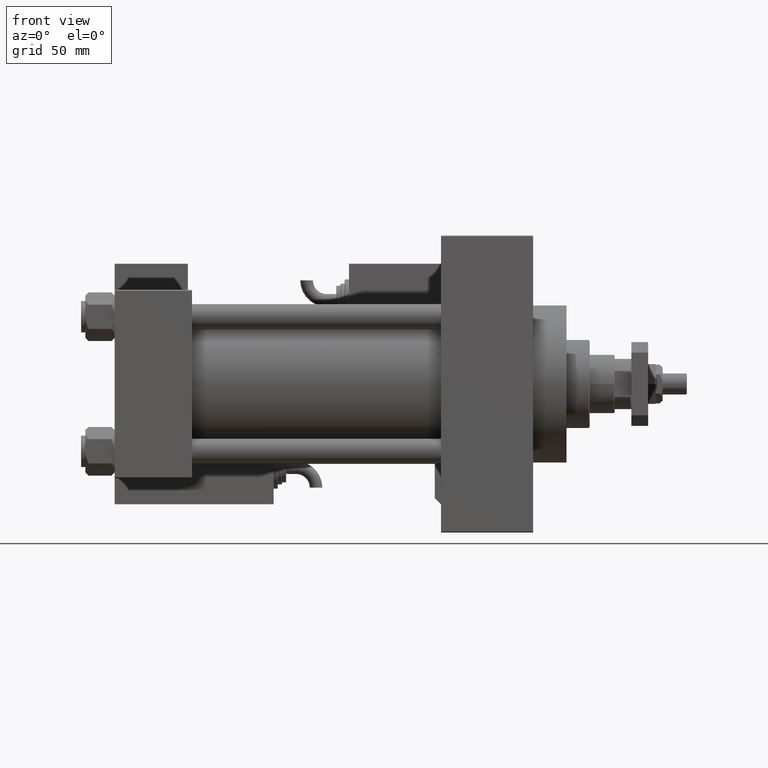
[diagram: clean part render]
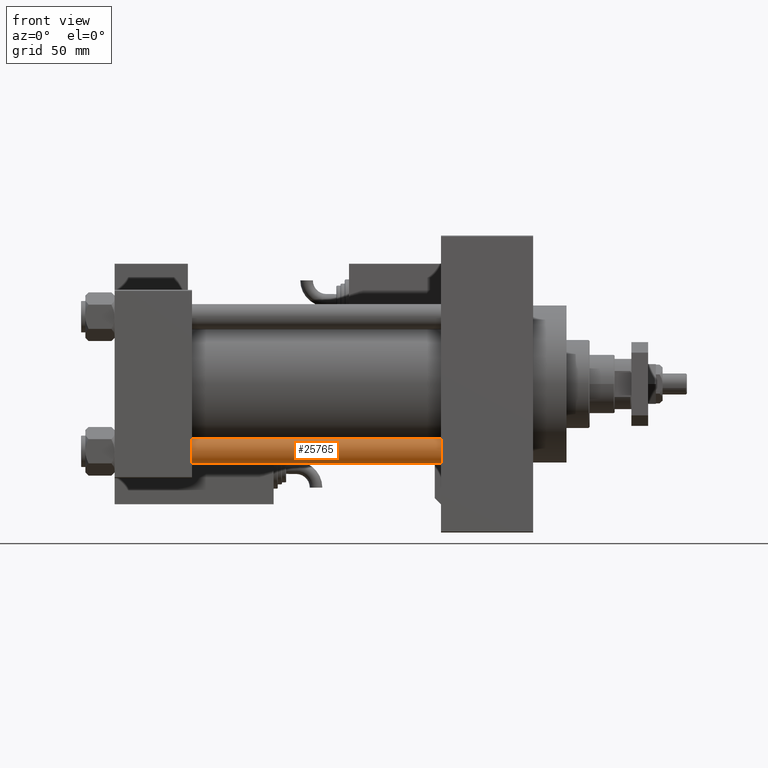
[diagram: same view with one face highlighted and labeled with its STEP entity id]
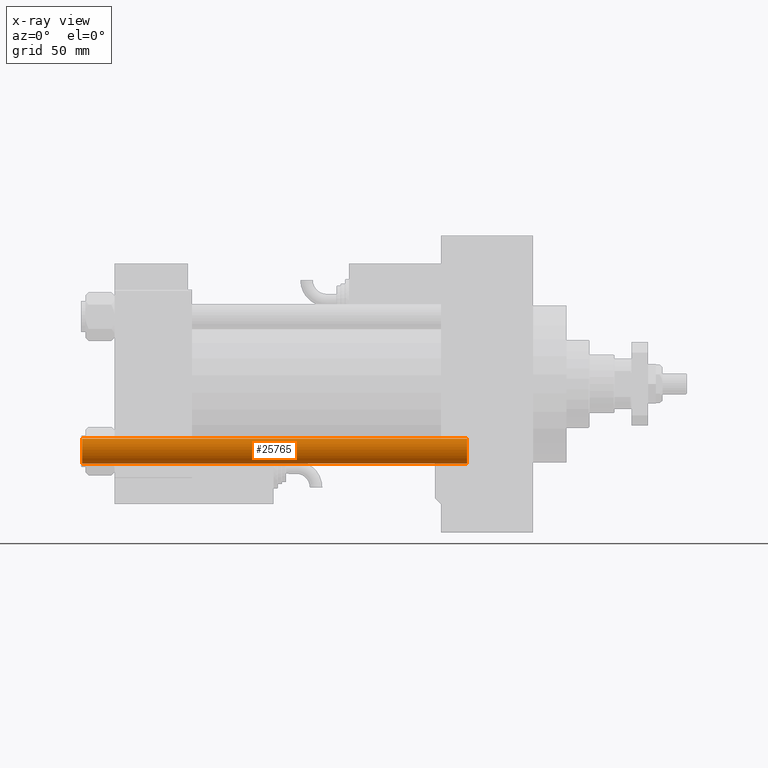
[diagram: x-ray of the same camera — body ghosted, the highlighted face saturated]
A machine part, front view. The second image highlights one B-rep face of the part: STEP entity #25765.
The next image is the same camera in x-ray: the body ghosted, the highlighted face saturated — about 0% of this face is hidden behind the body in this view.
In plain terms, the highlighted cylindrical surface (edge-blend (fillet) strip) has radius 6 mm, axis along (1, 0, 0).
Its self-contained STEP definition (entity closure, byte-faithful):
#5994 = DIRECTION ( 'NONE',  ( 1.000000000000000000, 0.000000000000000000, 0.000000000000000000 ) ) ;
#6643 = CARTESIAN_POINT ( 'NONE',  ( -6.000000000000000888, 0.000000000000000000, 184.5000000000000000 ) ) ;
#8200 = CARTESIAN_POINT ( 'NONE',  ( -6.000000000000000888, 0.000000000000000000, 0.5000000000000281997 ) ) ;
#8844 = LINE ( 'NONE', #43305, #46909 ) ;
#10154 = DIRECTION ( 'NONE',  ( -1.000000000000000000, 0.000000000000000000, 0.000000000000000000 ) ) ;
#12277 = DIRECTION ( 'NONE',  ( -0.000000000000000000, -0.000000000000000000, -1.000000000000000000 ) ) ;
#12534 = EDGE_CURVE ( 'NONE', #27091, #54232, #36532, .T. ) ;
#13381 = LINE ( 'NONE', #16438, #30929 ) ;
#13831 = VERTEX_POINT ( 'NONE', #36216 ) ;
#16438 = CARTESIAN_POINT ( 'NONE',  ( -6.000000000000000888, 0.000000000000000000, 185.0000000000000000 ) ) ;
#17402 = DIRECTION ( 'NONE',  ( 0.000000000000000000, 0.000000000000000000, -1.000000000000000000 ) ) ;
#17684 = CARTESIAN_POINT ( 'NONE',  ( 0.000000000000000000, 0.000000000000000000, 184.5000000000000000 ) ) ;
#19396 = DIRECTION ( 'NONE',  ( 1.000000000000000000, 0.000000000000000000, 0.000000000000000000 ) ) ;
#23462 = ORIENTED_EDGE ( 'NONE', *, *, #29775, .T. ) ;
#24550 = CIRCLE ( 'NONE', #44874, 6.000000000000000888 ) ;
#25765 = ADVANCED_FACE ( 'NONE', ( #31270 ), #39623, .T. ) ;
#26147 = VERTEX_POINT ( 'NONE', #6643 ) ;
#26313 = AXIS2_PLACEMENT_3D ( 'NONE', #34888, #52409, #10154 ) ;
#27091 = VERTEX_POINT ( 'NONE', #40920 ) ;
#29171 = ORIENTED_EDGE ( 'NONE', *, *, #12534, .T. ) ;
#29448 = EDGE_CURVE ( 'NONE', #26147, #54232, #13381, .T. ) ;
#29775 = EDGE_CURVE ( 'NONE', #13831, #27091, #8844, .T. ) ;
#30929 = VECTOR ( 'NONE', #12277, 1000.000000000000000 ) ;
#31270 = FACE_OUTER_BOUND ( 'NONE', #43347, .T. ) ;
#32446 = DIRECTION ( 'NONE',  ( -0.000000000000000000, -0.000000000000000000, 1.000000000000000000 ) ) ;
#34888 = CARTESIAN_POINT ( 'NONE',  ( 0.000000000000000000, 0.000000000000000000, 185.0000000000000000 ) ) ;
#36216 = CARTESIAN_POINT ( 'NONE',  ( 6.000000000000000888, 7.347880794884120722E-16, 184.5000000000000000 ) ) ;
#36532 = CIRCLE ( 'NONE', #43645, 6.000000000000000888 ) ;
#39623 = CYLINDRICAL_SURFACE ( 'NONE', #26313, 6.000000000000000888 ) ;
#40910 = EDGE_CURVE ( 'NONE', #26147, #13831, #24550, .T. ) ;
#40920 = CARTESIAN_POINT ( 'NONE',  ( 6.000000000000000888, 7.347880794884120722E-16, 0.5000000000000281997 ) ) ;
#43305 = CARTESIAN_POINT ( 'NONE',  ( 6.000000000000000888, 7.347880794884120722E-16, 185.0000000000000000 ) ) ;
#43347 = EDGE_LOOP ( 'NONE', ( #50275, #23462, #29171, #53729 ) ) ;
#43645 = AXIS2_PLACEMENT_3D ( 'NONE', #49135, #32446, #19396 ) ;
#44874 = AXIS2_PLACEMENT_3D ( 'NONE', #17684, #17402, #5994 ) ;
#46909 = VECTOR ( 'NONE', #47758, 1000.000000000000000 ) ;
#47758 = DIRECTION ( 'NONE',  ( -0.000000000000000000, -0.000000000000000000, -1.000000000000000000 ) ) ;
#49135 = CARTESIAN_POINT ( 'NONE',  ( 0.000000000000000000, 0.000000000000000000, 0.5000000000000281997 ) ) ;
#50275 = ORIENTED_EDGE ( 'NONE', *, *, #40910, .T. ) ;
#52409 = DIRECTION ( 'NONE',  ( -0.000000000000000000, -0.000000000000000000, -1.000000000000000000 ) ) ;
#53729 = ORIENTED_EDGE ( 'NONE', *, *, #29448, .F. ) ;
#54232 = VERTEX_POINT ( 'NONE', #8200 ) ;